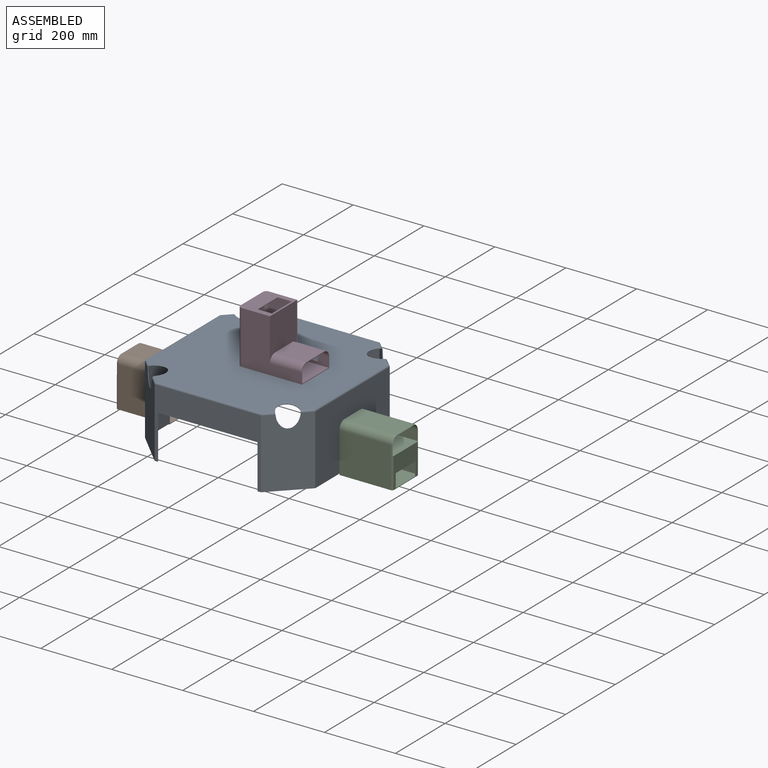
[diagram: assembled view]
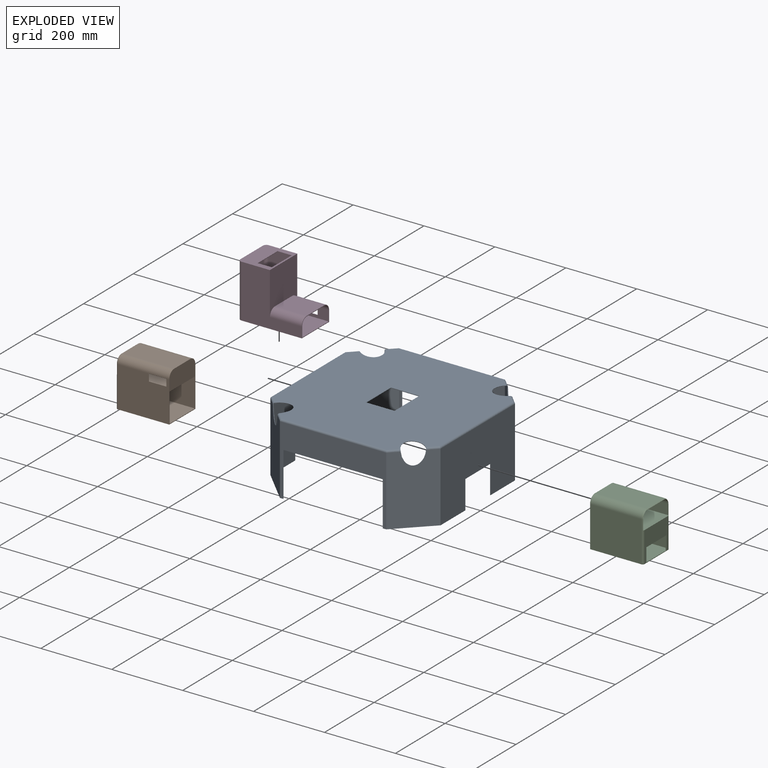
[diagram: exploded view]
GUIDED TOUR — MATED ASSEMBLY (Onshape document 121fe0d97bcf0c29fb9fe97b, AutoMate assembly 121fe0d97bcf0c29fb9fe97b_f3bc597520fd8b47ade184e0_697cc7e36937c5ca32d78726_default)

This assembly has 4 components, labeled P0..P3 below (a component is one placed occurrence of a part; the same part can appear more than once), held together by 3 mates. A mate is a constraint between two components; its type names the relative motion it leaves free:
  FASTENED — locks the two components together rigidly (no relative motion),
  PARALLEL — keeps the two listed directions parallel.
Axis/direction vectors are unit vectors and 'through' points are millimeter coordinates, both in the assembly's world frame.

MATES
  1. FASTENED "Fastened 2": P1 <-> P0, direction (1.000, 0.000, 0.000) through (-240.57, -1.00, -2.46) mm
  2. FASTENED "Fastened 1": P2 <-> P0, direction (-1.000, 0.000, 0.000) through (239.43, -1.00, -2.46) mm
  3. PARALLEL "Parallel 1": P3 <-> P0, direction (0.000, 0.000, -1.000) through (43.43, -1.00, 117.54) mm

ASSEMBLY ORDER
  1. P1 — the base component [order verified]
  2. P0 [order verified]
  3. P3 [order verified]
  4. P2 [order verified]
Order-tag legend:
  [order verified] — this step's position reverses a verified removal order: the component was checked to insert without passing through the ones already placed.

Of the 4 components, 1 carries the full construction recipe — the FeatureScript program that regenerates the part's solid from scratch; the rest are supplied as boundary geometry only.
Each toured component is shown spotlighted twice — in the assembled view, then in the exploded view, where a leader line traces a displaced component back to its assembled socket (saturated green if recipe-attached, orange if geometry-only; every other component desaturated gray) — followed by its recipe or geometry summary and the mates that hold it.
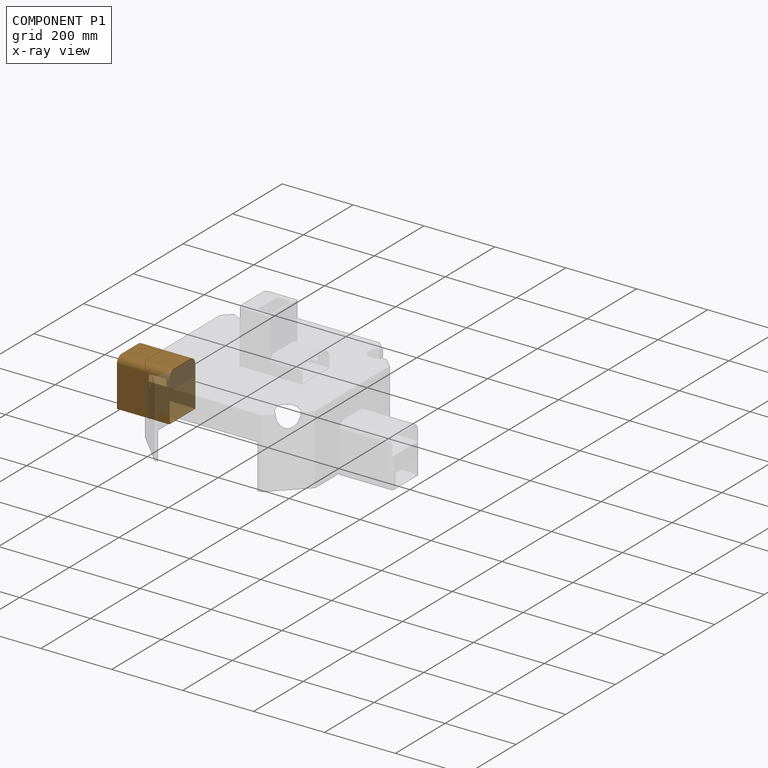
[diagram: component P1 — x-ray view]
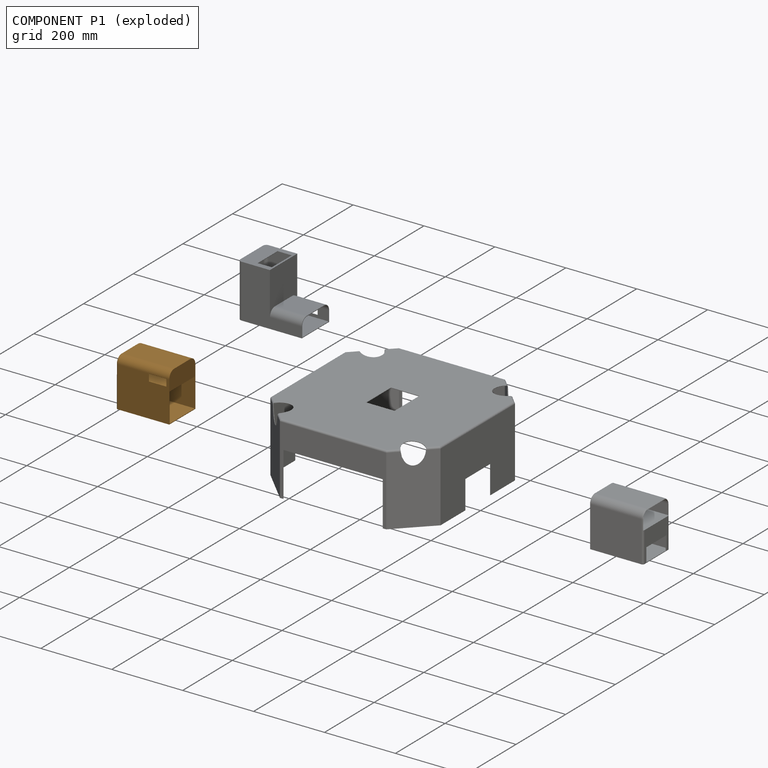
[diagram: component P1 — exploded]
COMPONENT P1 — geometry summary (no construction recipe available for this part):
  bounding box: 150.0 x 136.6 x 108.3 mm
  B-rep topology: 1 solid, 34 faces, 170 edges
  volume: 171647 mm^3 (8% of its bounding box)
Held by: FASTENED mate "Fastened 2" to P0.
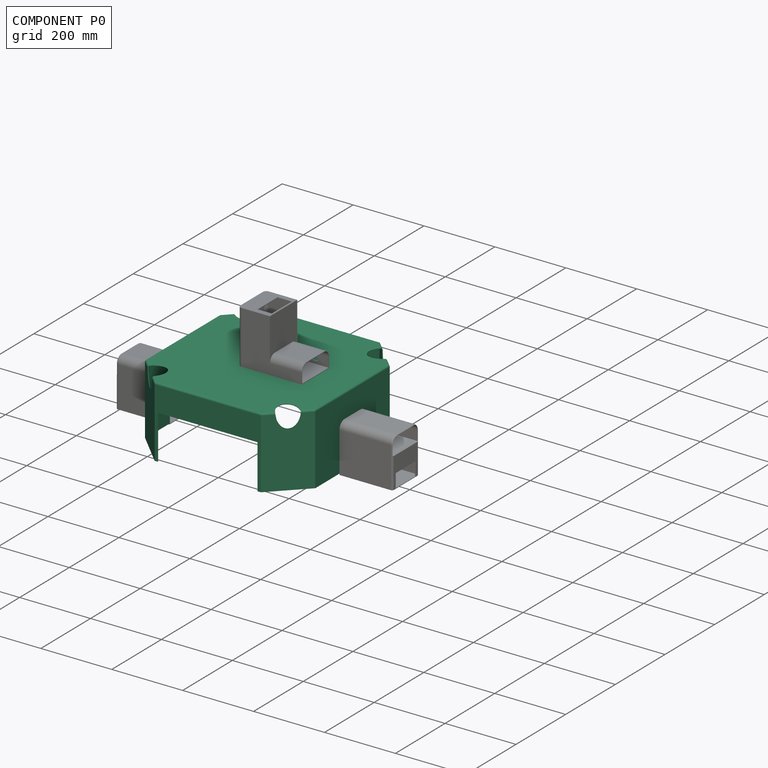
[diagram: component P0 — assembled]
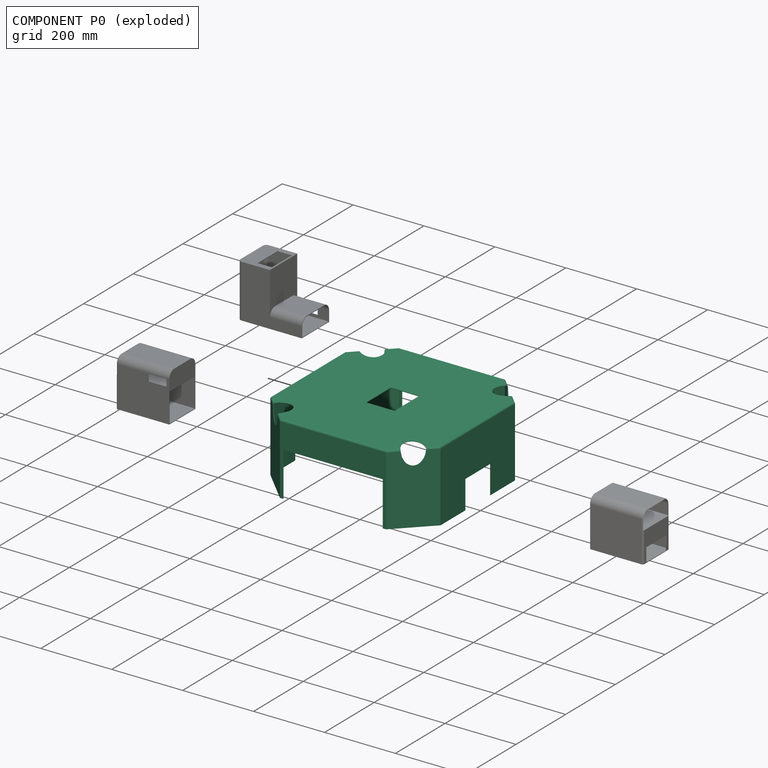
[diagram: component P0 — exploded]
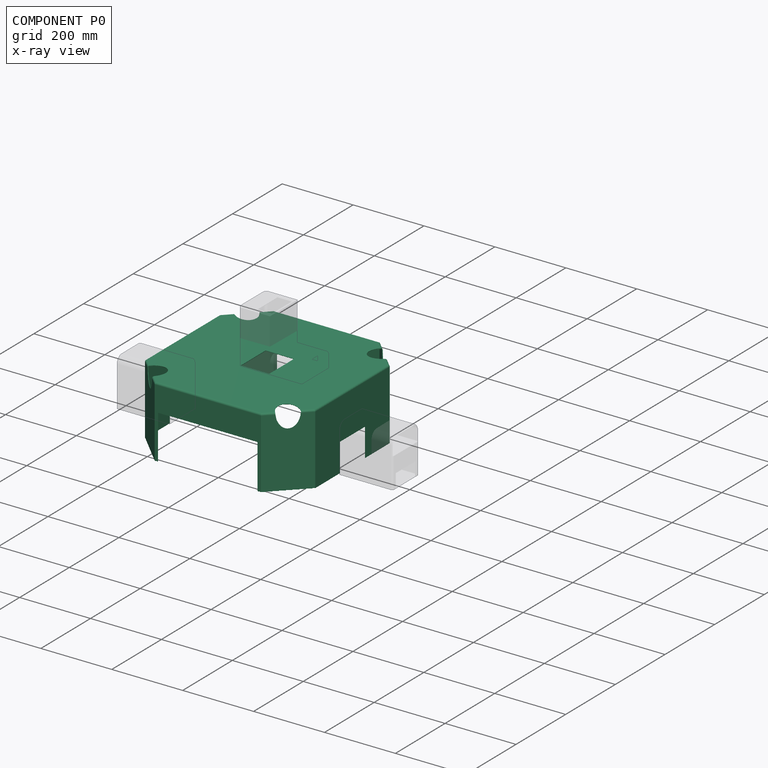
[diagram: component P0 — x-ray view]
COMPONENT P0 — recipe-attached (CADFS 00498683, mesh-verified: the recipe's output STEP matches this component's geometry to below the mesh-comparison resolution (tessellation chordal tolerance ~1.06 mm)).
Held by: FASTENED mate "Fastened 2" to P1; FASTENED mate "Fastened 1" to P2; PARALLEL mate "Parallel 1" to P3.
Construction recipe (FeatureScript — the CAD program that rebuilds this solid; sketch coordinates are in the units given by the * unit suffixes, e.g. mm):

FeatureScript 1511;
import(path : "onshape/std/geometry.fs", version : "1511.0");
import(path : "onshape/std/common.fs", version : "1511.0");
const mm = millimeter;
const VERTEX = EntityType.VERTEX;
const EDGE = EntityType.EDGE;
const FACE = EntityType.FACE;
const BODY = EntityType.BODY;
function v(x, y){return vector(x, y);}
function OD(order){return orderDisambiguation(order);}
function OSD(set){return originalSetDisambiguation(set);}
function TD(topology){return topologyDisambiguation(topology);}
function TDD(query){return trueDependencyDisambiguation(query);}
function sQuery(a, b, c) {return sketchEntityQuery(a, b, c);}

annotation { "Feature Type Name" : "Feature", "Feature Type Description" : "" }
export const myFeature = defineFeature(function(context is Context, id is Id, definition is map)
    precondition{}
    {
        {
            var Q0;
            Q0=qCreatedBy(makeId("Front.planeOp"),FACE);
            var sketch = newSketch(context, id + "F0", { "sketchPlane" : qUnion([Q0])});
            skLineSegment(sketch, "E0.bottom", {"start": v(240, -100) * mm, "end": v(-240, -100) * mm});
            skLineSegment(sketch, "E0.top", {"start": v(240, 100) * mm, "end": v(-240, 100) * mm});
            skLineSegment(sketch, "E0.left", {"start": v(240, -100) * mm, "end": v(240, 100) * mm});
            skLineSegment(sketch, "E0.right", {"start": v(-240, -100) * mm, "end": v(-240, 100) * mm});
            skPoint(sketch, "E0.middle", {"position": v(0, 0) * mm});
            skLineSegment(sketch, "E1", {"start": v(0, 0) * mm, "end": v(0, -124.49) * mm, "construction": true});
            skPoint(sketch, "E1.endSnap0", {"position": v(0, -100) * mm});
            skLineSegment(sketch, "E2", {"start": v(0, -100) * mm, "end": v(140, -100) * mm});
            skLineSegment(sketch, "E3", {"start": v(140, -100) * mm, "end": v(140, 25) * mm});
            skLineSegment(sketch, "E4", {"start": v(140, 25) * mm, "end": v(-140, 25) * mm});
            skLineSegment(sketch, "E5", {"start": v(-140, 25) * mm, "end": v(-140, -100) * mm});
            skLineSegment(sketch, "E6", {"start": v(-140, -100) * mm, "end": v(0, -100) * mm});
            skSolve(sketch);
        }
        {
            var Q0;
            Q0=makeQuery(id+"F0.imprint","IMPRINT",FACE,{"disambiguationData":[TD([[makeQuery(id+"F0.imprint","IMPRINT",EDGE,{"derivedFrom":sQuery(id+"F0.wireOp",EDGE,"E0.top")}),1.0]])]});
            extrude(context, id + "F1", {"entities" : qUnion([Q0]), "endBound" : BoundingType.SYMMETRIC, "depth" : 480 * mm});
        }
        {
            var Q0;
            Q0=makeQuery(id+"F1.opExtrude","CAP_EDGE",EDGE,{"disambiguationData":[OSD([sQuery(id+"F0.wireOp",EDGE,"E0.left")])],"isStart":false});
            var Q1;
            Q1=makeQuery(id+"F1.opExtrude","CAP_EDGE",EDGE,{"disambiguationData":[OSD([sQuery(id+"F0.wireOp",EDGE,"E0.left")])],"isStart":true});
            var Q2;
            Q2=makeQuery(id+"F1.opExtrude","CAP_EDGE",EDGE,{"disambiguationData":[OSD([sQuery(id+"F0.wireOp",EDGE,"E0.right")])],"isStart":true});
            var Q3;
            Q3=makeQuery(id+"F1.opExtrude","CAP_EDGE",EDGE,{"disambiguationData":[OSD([sQuery(id+"F0.wireOp",EDGE,"E0.right")])],"isStart":false});
            chamfer(context, id + "F2", {"entities" : qUnion([Q0, Q1, Q2, Q3]), "width" : 90 * mm, "tangentPropagation" : true});
        }
        {
            var Q0;
            {var subQ0=sQuery(id+"F0.wireOp",EDGE,"E0.bottom");Q0=makeQuery(id+"F1.opExtrude","SWEPT_FACE",FACE,{"disambiguationData":[OSD([subQ0]),TDD([makeQuery(id+"F0.imprint","IMPRINT",EDGE,{"disambiguationData":[TD([[makeQuery(id+"F0.imprint","INTERSECT",VERTEX,{"derivedFrom":[subQ0,sQuery(id+"F0.wireOp",EDGE,"E0.left")]}),-1.0]])],"derivedFrom":subQ0})])]});}
            var Q1;
            {var subQ0=sQuery(id+"F0.wireOp",EDGE,"E0.bottom");Q1=makeQuery(id+"F1.opExtrude","SWEPT_FACE",FACE,{"disambiguationData":[OSD([subQ0]),TDD([makeQuery(id+"F0.imprint","IMPRINT",EDGE,{"disambiguationData":[TD([[makeQuery(id+"F0.imprint","INTERSECT",VERTEX,{"derivedFrom":[subQ0,sQuery(id+"F0.wireOp",EDGE,"E0.right")]}),1.0]])],"derivedFrom":subQ0})])]});}
            var Q2;
            Q2=makeQuery(id+"F1.opExtrude","SWEPT_FACE",FACE,{"disambiguationData":[OSD([sQuery(id+"F0.wireOp",EDGE,"E4")])]});
            var Q3;
            Q3=makeQuery(id+"F1.opExtrude","SWEPT_FACE",FACE,{"disambiguationData":[OSD([sQuery(id+"F0.wireOp",EDGE,"E3")])]});
            var Q4;
            Q4=makeQuery(id+"F1.opExtrude","SWEPT_FACE",FACE,{"disambiguationData":[OSD([sQuery(id+"F0.wireOp",EDGE,"E5")])]});
            shell(context, id + "F3", {"entities" : qUnion([Q0, Q1, Q2, Q3, Q4]), "thickness" : 1.6 * mm});
        }
        {
            var Q0;
            Q0=makeQuery(id+"F2.opChamfer","BLEND_EDGE",EDGE,{"blendedFrom":[makeQuery(id+"F1.opExtrude","CAP_EDGE",EDGE,{"disambiguationData":[OSD([sQuery(id+"F0.wireOp",EDGE,"E0.right")])],"isStart":true}),makeQuery(id+"F1.opExtrude","SWEPT_FACE",FACE,{"disambiguationData":[OSD([sQuery(id+"F0.wireOp",EDGE,"E0.top")])]})],"blendedInto":[makeQuery(id+"F1.opExtrude","SWEPT_FACE",FACE,{"disambiguationData":[OSD([sQuery(id+"F0.wireOp",EDGE,"E0.top")])]})]});
            cPlane(context, id + "F4", {"entities" : qUnion([Q0]), "cplaneType" : CPlaneType.LINE_ANGLE, "offset" : 25 * mm, "angle" : 45 * degree, "width" : 150 * mm, "height" : 150 * mm});
        }
        {
            var Q0;
            Q0=makeQuery(id+"F2.opChamfer","BLEND_EDGE",EDGE,{"blendedFrom":[makeQuery(id+"F1.opExtrude","CAP_EDGE",EDGE,{"disambiguationData":[OSD([sQuery(id+"F0.wireOp",EDGE,"E0.right")])],"isStart":false}),makeQuery(id+"F1.opExtrude","SWEPT_FACE",FACE,{"disambiguationData":[OSD([sQuery(id+"F0.wireOp",EDGE,"E0.top")])]})],"blendedInto":[makeQuery(id+"F1.opExtrude","SWEPT_FACE",FACE,{"disambiguationData":[OSD([sQuery(id+"F0.wireOp",EDGE,"E0.top")])]})]});
            cPlane(context, id + "F5", {"entities" : qUnion([Q0]), "cplaneType" : CPlaneType.LINE_ANGLE, "offset" : 25 * mm, "angle" : 45 * degree, "oppositeDirection" : true, "width" : 150 * mm, "height" : 150 * mm});
        }
        {
            var Q0;
            Q0=makeQuery(id+"F2.opChamfer","BLEND_EDGE",EDGE,{"blendedFrom":[makeQuery(id+"F1.opExtrude","CAP_EDGE",EDGE,{"disambiguationData":[OSD([sQuery(id+"F0.wireOp",EDGE,"E0.left")])],"isStart":false}),makeQuery(id+"F1.opExtrude","SWEPT_FACE",FACE,{"disambiguationData":[OSD([sQuery(id+"F0.wireOp",EDGE,"E0.top")])]})],"blendedInto":[makeQuery(id+"F1.opExtrude","SWEPT_FACE",FACE,{"disambiguationData":[OSD([sQuery(id+"F0.wireOp",EDGE,"E0.top")])]})]});
            cPlane(context, id + "F6", {"entities" : qUnion([Q0]), "cplaneType" : CPlaneType.LINE_ANGLE, "offset" : 25 * mm, "angle" : 45 * degree, "width" : 150 * mm, "height" : 150 * mm});
        }
        {
            var Q0;
            Q0=makeQuery(id+"F2.opChamfer","BLEND_EDGE",EDGE,{"blendedFrom":[makeQuery(id+"F1.opExtrude","CAP_EDGE",EDGE,{"disambiguationData":[OSD([sQuery(id+"F0.wireOp",EDGE,"E0.left")])],"isStart":true}),makeQuery(id+"F1.opExtrude","SWEPT_FACE",FACE,{"disambiguationData":[OSD([sQuery(id+"F0.wireOp",EDGE,"E0.top")])]})],"blendedInto":[makeQuery(id+"F1.opExtrude","SWEPT_FACE",FACE,{"disambiguationData":[OSD([sQuery(id+"F0.wireOp",EDGE,"E0.top")])]})]});
            cPlane(context, id + "F7", {"entities" : qUnion([Q0]), "cplaneType" : CPlaneType.LINE_ANGLE, "offset" : 25 * mm, "angle" : 45 * degree, "oppositeDirection" : true, "width" : 150 * mm, "height" : 150 * mm});
        }
        {
            var Q0;
            Q0=qCreatedBy(id+"F6.planeOp",FACE);
            var sketch = newSketch(context, id + "F8", { "sketchPlane" : qUnion([Q0])});
            skCircle(sketch, "E7", {"center": v(71.76, -101.48) * mm, "radius": 30 * mm});
            skPoint(sketch, "E8.trimOffspring.end.orphan", {"position": v(123.72, -64.74) * mm});
            skPoint(sketch, "E9.0.start.orphan", {"position": v(19.8, -138.22) * mm});
            skSolve(sketch);
        }
        {
            var Q0;
            Q0=qCreatedBy(id+"F7.planeOp",FACE);
            var sketch = newSketch(context, id + "F9", { "sketchPlane" : qUnion([Q0])});
            skCircle(sketch, "E10", {"center": v(71.76, -101.48) * mm, "radius": 30 * mm});
            skPoint(sketch, "E11.trimOffspring.end.orphan", {"position": v(19.8, -138.22) * mm});
            skPoint(sketch, "E12.0.start.orphan", {"position": v(123.72, -64.74) * mm});
            skSolve(sketch);
        }
        {
            var Q0;
            Q0=qCreatedBy(id+"F4.planeOp",FACE);
            var sketch = newSketch(context, id + "F10", { "sketchPlane" : qUnion([Q0])});
            skCircle(sketch, "E13", {"center": v(-71.76, -101.48) * mm, "radius": 30 * mm});
            skPoint(sketch, "E14.orphan", {"position": v(-19.8, -138.22) * mm});
            skPoint(sketch, "E15.0.end.orphan", {"position": v(-123.72, -64.74) * mm});
            skSolve(sketch);
        }
        {
            var Q0;
            Q0=qCreatedBy(id+"F5.planeOp",FACE);
            var sketch = newSketch(context, id + "F11", { "sketchPlane" : qUnion([Q0])});
            skCircle(sketch, "E16", {"center": v(-71.76, -101.48) * mm, "radius": 30 * mm});
            skPoint(sketch, "E17.orphan", {"position": v(-123.72, -64.74) * mm});
            skPoint(sketch, "E18.0.end.orphan", {"position": v(-19.8, -138.22) * mm});
            skSolve(sketch);
        }
        {
            var Q0;
            Q0=makeQuery(id+"F10.imprint","IMPRINT",FACE,{"disambiguationData":[TD([[makeQuery(id+"F10.imprint","IMPRINT",EDGE,{"derivedFrom":sQuery(id+"F10.wireOp",EDGE,"E13")}),1.0]])]});
            extrude(context, id + "F12", {"entities" : qUnion([Q0]), "operationType" : NewBodyOperationType.REMOVE, "depth" : 78 * mm});
        }
        {
            var Q0;
            Q0=makeQuery(id+"F11.imprint","IMPRINT",FACE,{"disambiguationData":[TD([[makeQuery(id+"F11.imprint","IMPRINT",EDGE,{"derivedFrom":sQuery(id+"F11.wireOp",EDGE,"E16")}),1.0]])]});
            extrude(context, id + "F13", {"entities" : qUnion([Q0]), "operationType" : NewBodyOperationType.REMOVE, "oppositeDirection" : true, "depth" : 82 * mm});
        }
        {
            var Q0;
            Q0=makeQuery(id+"F8.imprint","IMPRINT",FACE,{"disambiguationData":[TD([[makeQuery(id+"F8.imprint","IMPRINT",EDGE,{"derivedFrom":sQuery(id+"F8.wireOp",EDGE,"E7")}),1.0]])]});
            extrude(context, id + "F14", {"entities" : qUnion([Q0]), "operationType" : NewBodyOperationType.REMOVE, "oppositeDirection" : true, "depth" : 153 * mm});
        }
        {
            var Q0;
            Q0=makeQuery(id+"F9.imprint","IMPRINT",FACE,{"disambiguationData":[TD([[makeQuery(id+"F9.imprint","IMPRINT",EDGE,{"derivedFrom":sQuery(id+"F9.wireOp",EDGE,"E10")}),1.0]])]});
            extrude(context, id + "F15", {"entities" : qUnion([Q0]), "operationType" : NewBodyOperationType.REMOVE, "depth" : 141 * mm});
        }
        {
            var Q0;
            Q0=makeQuery(id+"F1.opExtrude","SWEPT_FACE",FACE,{"disambiguationData":[OSD([sQuery(id+"F0.wireOp",EDGE,"E0.right")])]});
            var sketch = newSketch(context, id + "F16", { "sketchPlane" : qUnion([Q0])});
            skLineSegment(sketch, "E19.0.0", {"start": v(-50, -100) * mm, "end": v(50, -100) * mm});
            skPoint(sketch, "E20.endSnap0", {"position": v(0, -100) * mm});
            skLineSegment(sketch, "E21", {"start": v(0, -100) * mm, "end": v(-50, -100) * mm});
            skLineSegment(sketch, "E22", {"start": v(-50, -100) * mm, "end": v(-50, -20) * mm});
            skLineSegment(sketch, "E23", {"start": v(-50, -20) * mm, "end": v(50, -20) * mm});
            skLineSegment(sketch, "E24", {"start": v(50, -20) * mm, "end": v(50, -100) * mm});
            skLineSegment(sketch, "E25", {"start": v(50, -100) * mm, "end": v(0, -100) * mm});
            skPoint(sketch, "E19.0.1.start.orphan", {"position": v(150, -100) * mm});
            skPoint(sketch, "E19.0.2.start.orphan", {"position": v(150, 100) * mm});
            skPoint(sketch, "E19.0.3.end.orphan", {"position": v(-150, -100) * mm});
            skPoint(sketch, "E19.0.3.start.orphan", {"position": v(-150, 100) * mm});
            skPoint(sketch, "E20.end.orphan", {"position": v(0, -20) * mm});
            skSolve(sketch);
        }
        {
            var Q0;
            Q0 = qSketchRegion(id + "F16", true);
            extrude(context, id + "F17", {"entities" : qUnion([Q0]), "operationType" : NewBodyOperationType.REMOVE, "oppositeDirection" : true, "depth" : 688 * mm});
        }
        {
            var Q0;
            Q0=makeQuery(id+"F1.opExtrude","SWEPT_FACE",FACE,{"disambiguationData":[OSD([sQuery(id+"F0.wireOp",EDGE,"E0.top")])]});
            var sketch = newSketch(context, id + "F18", { "sketchPlane" : qUnion([Q0])});
            skLineSegment(sketch, "E26.bottom", {"start": v(40, -50) * mm, "end": v(-40, -50) * mm});
            skLineSegment(sketch, "E26.top", {"start": v(40, 50) * mm, "end": v(-40, 50) * mm});
            skLineSegment(sketch, "E26.left", {"start": v(40, -50) * mm, "end": v(40, 50) * mm});
            skLineSegment(sketch, "E26.right", {"start": v(-40, -50) * mm, "end": v(-40, 50) * mm});
            skPoint(sketch, "E26.middle", {"position": v(0, 0) * mm});
            skPoint(sketch, "E27.0.3.start.orphan", {"position": v(-150, 240) * mm});
            skPoint(sketch, "E27.0.4.end.orphan", {"position": v(-173.79, 216.21) * mm});
            skPoint(sketch, "E27.0.5.start.orphan", {"position": v(-216.21, 173.79) * mm});
            skPoint(sketch, "E27.0.6.start.orphan", {"position": v(-240, 150) * mm});
            skPoint(sketch, "E27.0.7.start.orphan", {"position": v(-240, -150) * mm});
            skPoint(sketch, "E27.0.8.end.orphan", {"position": v(-216.21, -173.79) * mm});
            skPoint(sketch, "E27.0.9.start.orphan", {"position": v(-173.79, -216.21) * mm});
            skPoint(sketch, "E27.0.10.start.orphan", {"position": v(-150, -240) * mm});
            skPoint(sketch, "E27.0.11.start.orphan", {"position": v(150, -240) * mm});
            skPoint(sketch, "E27.0.12.end.orphan", {"position": v(173.79, -216.21) * mm});
            skPoint(sketch, "E27.0.13.start.orphan", {"position": v(216.21, -173.79) * mm});
            skPoint(sketch, "E27.0.14.start.orphan", {"position": v(240, -150) * mm});
            skPoint(sketch, "E27.0.15.start.orphan", {"position": v(240, 150) * mm});
            skPoint(sketch, "E27.0.1.end.orphan", {"position": v(150, 240) * mm});
            skPoint(sketch, "E27.0.0.end.orphan", {"position": v(216.21, 173.79) * mm});
            skPoint(sketch, "E27.0.0.start.orphan", {"position": v(173.79, 216.21) * mm});
            skLineSegment(sketch, "E28", {"start": v(0, -50) * mm, "end": v(0, 59.6) * mm, "construction": true});
            skSolve(sketch);
        }
        {
            var Q0;
            Q0 = qSketchRegion(id + "F18", true);
            extrude(context, id + "F19", {"entities" : qUnion([Q0]), "operationType" : NewBodyOperationType.REMOVE, "oppositeDirection" : true, "depth" : 25 * mm});
        }
        {
            var Q0;
            Q0=makeQuery(id+"F1.opExtrude","CAP_EDGE",EDGE,{"disambiguationData":[OSD([sQuery(id+"F0.wireOp",EDGE,"E0.top")])],"isStart":true});
            var Q1;
            {var subQ0=sQuery(id+"F0.wireOp",EDGE,"E0.right");var subQ1=sQuery(id+"F0.wireOp",EDGE,"E0.top");var subQ2=makeQuery(id+"F1.opExtrude","SWEPT_FACE",FACE,{"disambiguationData":[OSD([subQ1])]});var subQ3=makeQuery(id+"F1.opExtrude","CAP_EDGE",EDGE,{"disambiguationData":[OSD([subQ0])],"isStart":true});Q1=makeQuery(id+"F12.boolean.opBoolean","SPLIT",EDGE,{"disambiguationData":[TD([makeQuery(id+"F1.opExtrude","CAP_FACE",FACE,{"disambiguationData":[OSD([sQuery(id+"F0.wireOp",EDGE,"E0.bottom"),subQ1,sQuery(id+"F0.wireOp",EDGE,"E0.left"),subQ0,sQuery(id+"F0.wireOp",EDGE,"E3"),sQuery(id+"F0.wireOp",EDGE,"E4"),sQuery(id+"F0.wireOp",EDGE,"E5")])],"isStart":true})])],"derivedFrom":makeQuery(id+"F2.opChamfer","BLEND_EDGE",EDGE,{"blendedFrom":[subQ3,subQ2],"blendedInto":[subQ2]})});}
            var Q2;
            {var subQ0=sQuery(id+"F0.wireOp",EDGE,"E0.left");var subQ1=sQuery(id+"F0.wireOp",EDGE,"E0.top");var subQ2=makeQuery(id+"F1.opExtrude","CAP_EDGE",EDGE,{"disambiguationData":[OSD([subQ0])],"isStart":true});var subQ3=makeQuery(id+"F1.opExtrude","SWEPT_FACE",FACE,{"disambiguationData":[OSD([subQ1])]});Q2=makeQuery(id+"F15.boolean.opBoolean","SPLIT",EDGE,{"disambiguationData":[TD([makeQuery(id+"F1.opExtrude","CAP_FACE",FACE,{"disambiguationData":[OSD([sQuery(id+"F0.wireOp",EDGE,"E0.bottom"),subQ1,subQ0,sQuery(id+"F0.wireOp",EDGE,"E0.right"),sQuery(id+"F0.wireOp",EDGE,"E3"),sQuery(id+"F0.wireOp",EDGE,"E4"),sQuery(id+"F0.wireOp",EDGE,"E5")])],"isStart":true})])],"derivedFrom":makeQuery(id+"F2.opChamfer","BLEND_EDGE",EDGE,{"blendedFrom":[subQ2,subQ3],"blendedInto":[subQ3]})});}
            var Q3;
            {var subQ0=makeQuery(id+"F1.opExtrude","SWEPT_FACE",FACE,{"disambiguationData":[OSD([sQuery(id+"F0.wireOp",EDGE,"E0.top")])]});var subQ1=sQuery(id+"F0.wireOp",EDGE,"E0.left");var subQ2=makeQuery(id+"F1.opExtrude","CAP_EDGE",EDGE,{"disambiguationData":[OSD([subQ1])],"isStart":true});Q3=makeQuery(id+"F15.boolean.opBoolean","SPLIT",EDGE,{"disambiguationData":[TD([makeQuery(id+"F1.opExtrude","SWEPT_FACE",FACE,{"disambiguationData":[OSD([subQ1])]})])],"derivedFrom":makeQuery(id+"F2.opChamfer","BLEND_EDGE",EDGE,{"blendedFrom":[subQ2,subQ0],"blendedInto":[subQ0]})});}
            var Q4;
            {var subQ0=makeQuery(id+"F1.opExtrude","SWEPT_FACE",FACE,{"disambiguationData":[OSD([sQuery(id+"F0.wireOp",EDGE,"E0.top")])]});var subQ1=sQuery(id+"F0.wireOp",EDGE,"E0.right");var subQ2=makeQuery(id+"F1.opExtrude","CAP_EDGE",EDGE,{"disambiguationData":[OSD([subQ1])],"isStart":true});Q4=makeQuery(id+"F12.boolean.opBoolean","SPLIT",EDGE,{"disambiguationData":[TD([makeQuery(id+"F1.opExtrude","SWEPT_FACE",FACE,{"disambiguationData":[OSD([subQ1])]})])],"derivedFrom":makeQuery(id+"F2.opChamfer","BLEND_EDGE",EDGE,{"blendedFrom":[subQ2,subQ0],"blendedInto":[subQ0]})});}
            var Q5;
            Q5=makeQuery(id+"F1.opExtrude","SWEPT_EDGE",EDGE,{"disambiguationData":[OSD([sQuery(id+"F0.wireOp",EDGE,"E0.top"),sQuery(id+"F0.wireOp",EDGE,"E0.right")])]});
            var Q6;
            {var subQ0=makeQuery(id+"F1.opExtrude","SWEPT_FACE",FACE,{"disambiguationData":[OSD([sQuery(id+"F0.wireOp",EDGE,"E0.top")])]});var subQ1=sQuery(id+"F0.wireOp",EDGE,"E0.right");var subQ2=makeQuery(id+"F1.opExtrude","CAP_EDGE",EDGE,{"disambiguationData":[OSD([subQ1])],"isStart":false});Q6=makeQuery(id+"F13.boolean.opBoolean","SPLIT",EDGE,{"disambiguationData":[TD([makeQuery(id+"F1.opExtrude","SWEPT_FACE",FACE,{"disambiguationData":[OSD([subQ1])]})])],"derivedFrom":makeQuery(id+"F2.opChamfer","BLEND_EDGE",EDGE,{"blendedFrom":[subQ2,subQ0],"blendedInto":[subQ0]})});}
            var Q7;
            {var subQ0=sQuery(id+"F0.wireOp",EDGE,"E0.right");var subQ1=sQuery(id+"F0.wireOp",EDGE,"E0.top");var subQ2=makeQuery(id+"F1.opExtrude","SWEPT_FACE",FACE,{"disambiguationData":[OSD([subQ1])]});var subQ3=makeQuery(id+"F1.opExtrude","CAP_EDGE",EDGE,{"disambiguationData":[OSD([subQ0])],"isStart":false});Q7=makeQuery(id+"F13.boolean.opBoolean","SPLIT",EDGE,{"disambiguationData":[TD([makeQuery(id+"F1.opExtrude","CAP_FACE",FACE,{"disambiguationData":[OSD([sQuery(id+"F0.wireOp",EDGE,"E0.bottom"),subQ1,sQuery(id+"F0.wireOp",EDGE,"E0.left"),subQ0,sQuery(id+"F0.wireOp",EDGE,"E3"),sQuery(id+"F0.wireOp",EDGE,"E4"),sQuery(id+"F0.wireOp",EDGE,"E5")])],"isStart":false})])],"derivedFrom":makeQuery(id+"F2.opChamfer","BLEND_EDGE",EDGE,{"blendedFrom":[subQ3,subQ2],"blendedInto":[subQ2]})});}
            var Q8;
            Q8=makeQuery(id+"F1.opExtrude","CAP_EDGE",EDGE,{"disambiguationData":[OSD([sQuery(id+"F0.wireOp",EDGE,"E0.top")])],"isStart":false});
            var Q9;
            {var subQ0=makeQuery(id+"F1.opExtrude","SWEPT_FACE",FACE,{"disambiguationData":[OSD([sQuery(id+"F0.wireOp",EDGE,"E0.top")])]});var subQ1=sQuery(id+"F0.wireOp",EDGE,"E0.left");var subQ2=makeQuery(id+"F1.opExtrude","CAP_EDGE",EDGE,{"disambiguationData":[OSD([subQ1])],"isStart":false});Q9=makeQuery(id+"F14.boolean.opBoolean","SPLIT",EDGE,{"disambiguationData":[TD([makeQuery(id+"F1.opExtrude","SWEPT_FACE",FACE,{"disambiguationData":[OSD([subQ1])]})])],"derivedFrom":makeQuery(id+"F2.opChamfer","BLEND_EDGE",EDGE,{"blendedFrom":[subQ2,subQ0],"blendedInto":[subQ0]})});}
            var Q10;
            {var subQ0=sQuery(id+"F0.wireOp",EDGE,"E0.left");var subQ1=sQuery(id+"F0.wireOp",EDGE,"E0.top");var subQ2=makeQuery(id+"F1.opExtrude","CAP_EDGE",EDGE,{"disambiguationData":[OSD([subQ0])],"isStart":false});var subQ3=makeQuery(id+"F1.opExtrude","SWEPT_FACE",FACE,{"disambiguationData":[OSD([subQ1])]});Q10=makeQuery(id+"F14.boolean.opBoolean","SPLIT",EDGE,{"disambiguationData":[TD([makeQuery(id+"F1.opExtrude","CAP_FACE",FACE,{"disambiguationData":[OSD([sQuery(id+"F0.wireOp",EDGE,"E0.bottom"),subQ1,subQ0,sQuery(id+"F0.wireOp",EDGE,"E0.right"),sQuery(id+"F0.wireOp",EDGE,"E3"),sQuery(id+"F0.wireOp",EDGE,"E4"),sQuery(id+"F0.wireOp",EDGE,"E5")])],"isStart":false})])],"derivedFrom":makeQuery(id+"F2.opChamfer","BLEND_EDGE",EDGE,{"blendedFrom":[subQ2,subQ3],"blendedInto":[subQ3]})});}
            var Q11;
            Q11=makeQuery(id+"F1.opExtrude","SWEPT_EDGE",EDGE,{"disambiguationData":[OSD([sQuery(id+"F0.wireOp",EDGE,"E0.top"),sQuery(id+"F0.wireOp",EDGE,"E0.left")])]});
            var Q12;
            {var subQ0=sQuery(id+"F0.wireOp",EDGE,"E3");Q12=makeQuery(id+"F3.opShell","OFFSET_EDGE",EDGE,{"disambiguationData":[OSD([subQ0]),TDD([makeQuery(id+"F1.opExtrude","CAP_EDGE",EDGE,{"disambiguationData":[OSD([subQ0])],"isStart":false})])]});}
            var Q13;
            {var subQ0=sQuery(id+"F0.wireOp",EDGE,"E4");Q13=makeQuery(id+"F3.opShell","OFFSET_EDGE",EDGE,{"disambiguationData":[OSD([subQ0]),TDD([makeQuery(id+"F1.opExtrude","CAP_EDGE",EDGE,{"disambiguationData":[OSD([subQ0])],"isStart":false})])]});}
            var Q14;
            {var subQ0=sQuery(id+"F0.wireOp",EDGE,"E5");Q14=makeQuery(id+"F3.opShell","OFFSET_EDGE",EDGE,{"disambiguationData":[OSD([subQ0]),TDD([makeQuery(id+"F1.opExtrude","CAP_EDGE",EDGE,{"disambiguationData":[OSD([subQ0])],"isStart":false})])]});}
            var Q15;
            {var subQ0=sQuery(id+"F0.wireOp",EDGE,"E0.right");Q15=makeQuery(id+"F17.boolean.opBoolean","INTERSECT",EDGE,{"derivedFrom":[makeQuery(id+"F3.opShell","OFFSET_FACE",FACE,{"disambiguationData":[OSD([subQ0]),TDD([makeQuery(id+"F1.opExtrude","SWEPT_FACE",FACE,{"disambiguationData":[OSD([subQ0])]})])]}),makeQuery(id+"F17.opExtrude","SWEPT_FACE",FACE,{"disambiguationData":[OSD([sQuery(id+"F16.wireOp",EDGE,"E24")])]})]});}
            var Q16;
            {var subQ0=sQuery(id+"F0.wireOp",EDGE,"E0.right");Q16=makeQuery(id+"F17.boolean.opBoolean","INTERSECT",EDGE,{"derivedFrom":[makeQuery(id+"F3.opShell","OFFSET_FACE",FACE,{"disambiguationData":[OSD([subQ0]),TDD([makeQuery(id+"F1.opExtrude","SWEPT_FACE",FACE,{"disambiguationData":[OSD([subQ0])]})])]}),makeQuery(id+"F17.opExtrude","SWEPT_FACE",FACE,{"disambiguationData":[OSD([sQuery(id+"F16.wireOp",EDGE,"E22")])]})]});}
            var Q17;
            {var subQ0=sQuery(id+"F0.wireOp",EDGE,"E0.right");Q17=makeQuery(id+"F17.boolean.opBoolean","INTERSECT",EDGE,{"derivedFrom":[makeQuery(id+"F3.opShell","OFFSET_FACE",FACE,{"disambiguationData":[OSD([subQ0]),TDD([makeQuery(id+"F1.opExtrude","SWEPT_FACE",FACE,{"disambiguationData":[OSD([subQ0])]})])]}),makeQuery(id+"F17.opExtrude","SWEPT_FACE",FACE,{"disambiguationData":[OSD([sQuery(id+"F16.wireOp",EDGE,"E23")])]})]});}
            var Q18;
            {var subQ0=sQuery(id+"F0.wireOp",EDGE,"E0.left");Q18=makeQuery(id+"F17.boolean.opBoolean","INTERSECT",EDGE,{"derivedFrom":[makeQuery(id+"F3.opShell","OFFSET_FACE",FACE,{"disambiguationData":[OSD([subQ0]),TDD([makeQuery(id+"F1.opExtrude","SWEPT_FACE",FACE,{"disambiguationData":[OSD([subQ0])]})])]}),makeQuery(id+"F17.opExtrude","SWEPT_FACE",FACE,{"disambiguationData":[OSD([sQuery(id+"F16.wireOp",EDGE,"E24")])]})]});}
            var Q19;
            {var subQ0=sQuery(id+"F0.wireOp",EDGE,"E0.left");Q19=makeQuery(id+"F17.boolean.opBoolean","INTERSECT",EDGE,{"derivedFrom":[makeQuery(id+"F3.opShell","OFFSET_FACE",FACE,{"disambiguationData":[OSD([subQ0]),TDD([makeQuery(id+"F1.opExtrude","SWEPT_FACE",FACE,{"disambiguationData":[OSD([subQ0])]})])]}),makeQuery(id+"F17.opExtrude","SWEPT_FACE",FACE,{"disambiguationData":[OSD([sQuery(id+"F16.wireOp",EDGE,"E23")])]})]});}
            var Q20;
            {var subQ0=sQuery(id+"F0.wireOp",EDGE,"E0.left");Q20=makeQuery(id+"F17.boolean.opBoolean","INTERSECT",EDGE,{"derivedFrom":[makeQuery(id+"F3.opShell","OFFSET_FACE",FACE,{"disambiguationData":[OSD([subQ0]),TDD([makeQuery(id+"F1.opExtrude","SWEPT_FACE",FACE,{"disambiguationData":[OSD([subQ0])]})])]}),makeQuery(id+"F17.opExtrude","SWEPT_FACE",FACE,{"disambiguationData":[OSD([sQuery(id+"F16.wireOp",EDGE,"E22")])]})]});}
            var Q21;
            Q21=makeQuery(id+"F1.opExtrude","CAP_EDGE",EDGE,{"disambiguationData":[OSD([sQuery(id+"F0.wireOp",EDGE,"E4")])],"isStart":true});
            var Q22;
            Q22=makeQuery(id+"F1.opExtrude","CAP_EDGE",EDGE,{"disambiguationData":[OSD([sQuery(id+"F0.wireOp",EDGE,"E3")])],"isStart":true});
            var Q23;
            Q23=makeQuery(id+"F1.opExtrude","CAP_EDGE",EDGE,{"disambiguationData":[OSD([sQuery(id+"F0.wireOp",EDGE,"E5")])],"isStart":true});
            fillet(context, id + "F20", {"entities" : qUnion([Q0, Q1, Q2, Q3, Q4, Q5, Q6, Q7, Q8, Q9, Q10, Q11, Q12, Q13, Q14, Q15, Q16, Q17, Q18, Q19, Q20, Q21, Q22, Q23]), "radius" : 5 * mm, "tangentPropagation" : true, "allowEdgeOverflow" : false});
        }
    });
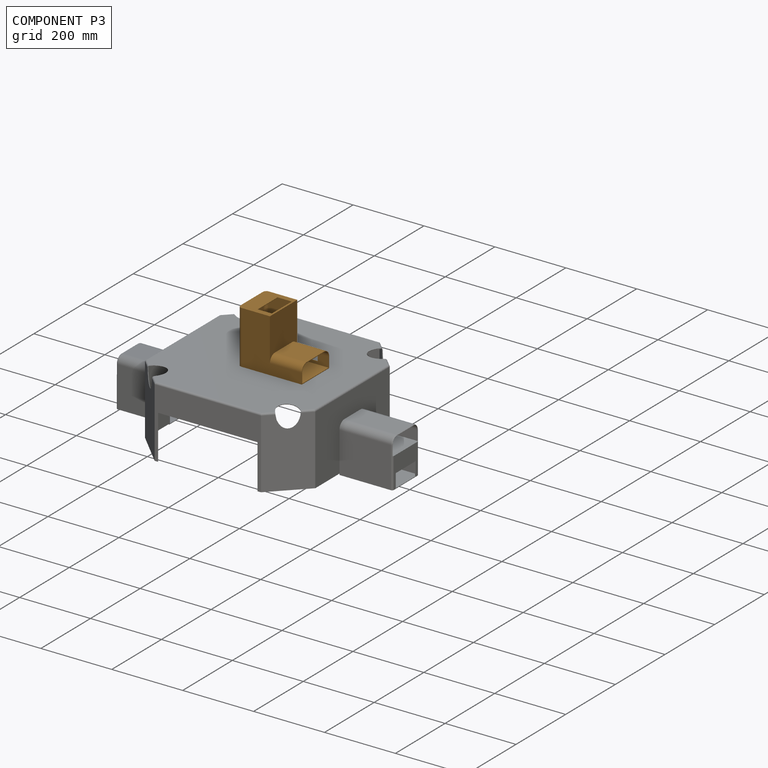
[diagram: component P3 — assembled]
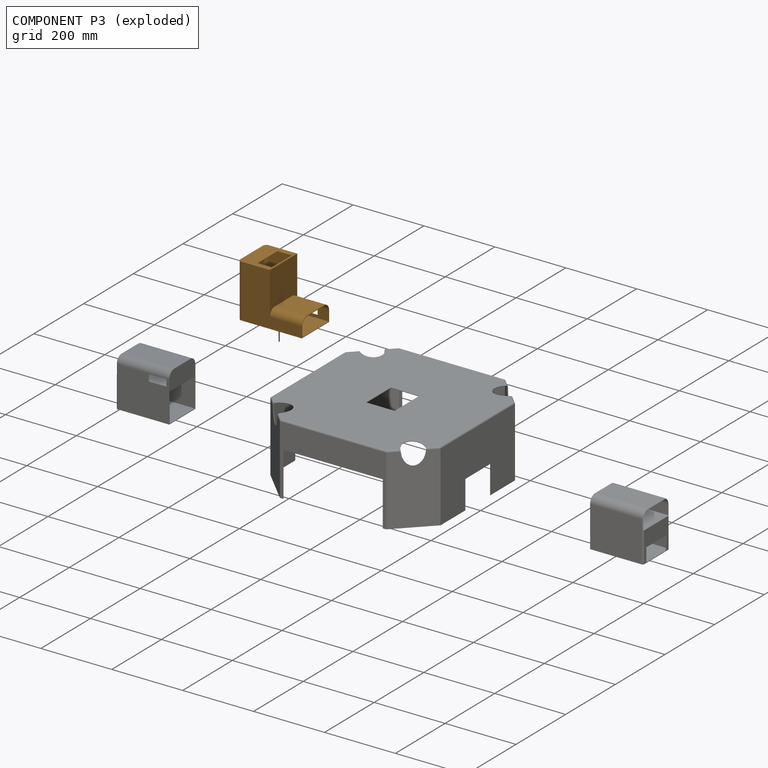
[diagram: component P3 — exploded]
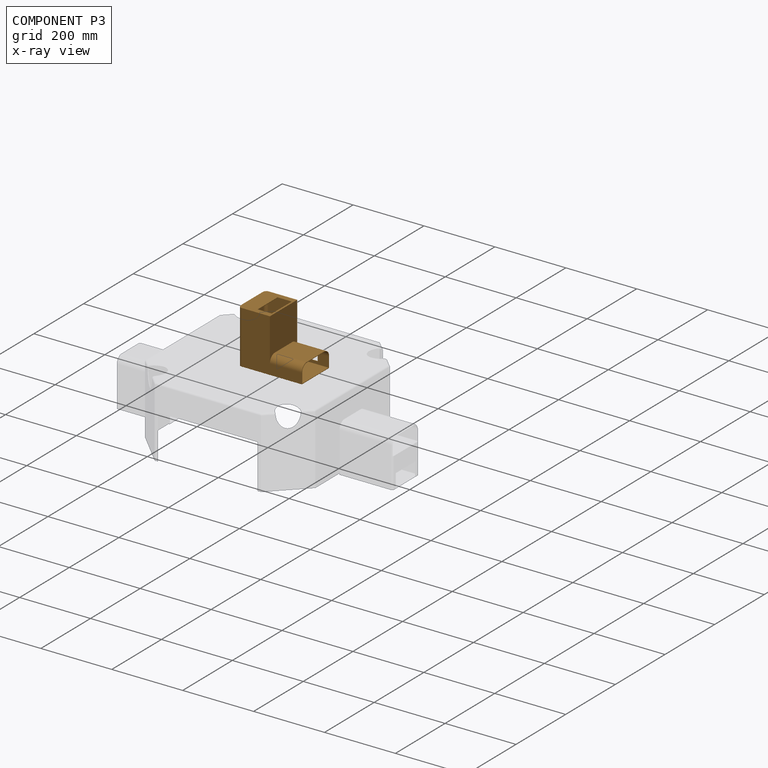
[diagram: component P3 — x-ray view]
COMPONENT P3 — geometry summary (no construction recipe available for this part):
  bounding box: 180.0 x 150.0 x 110.0 mm
  B-rep topology: 1 solid, 34 faces, 180 edges
  volume: 151166 mm^3 (5% of its bounding box)
Held by: PARALLEL mate "Parallel 1" to P0.
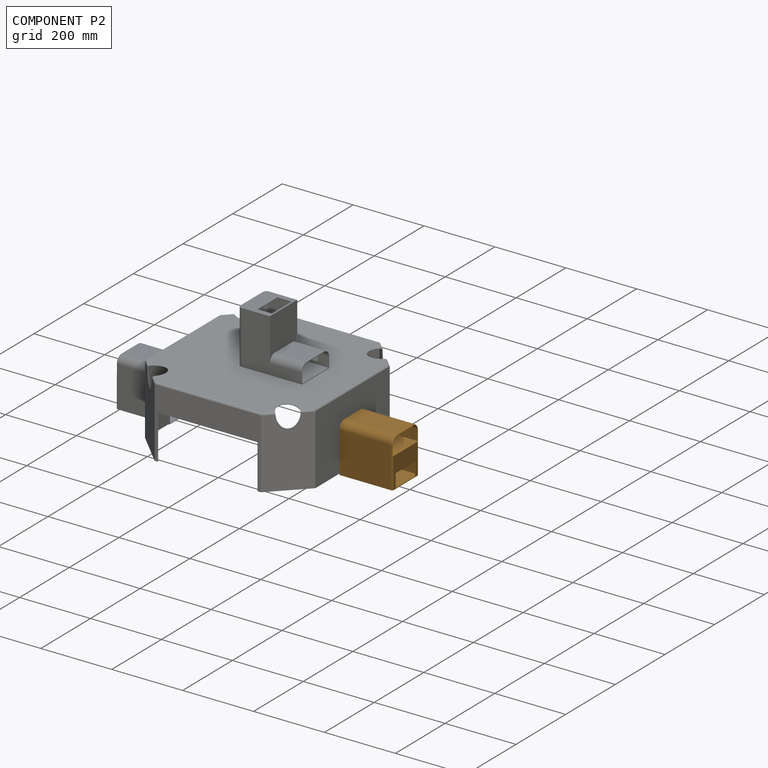
[diagram: component P2 — assembled]
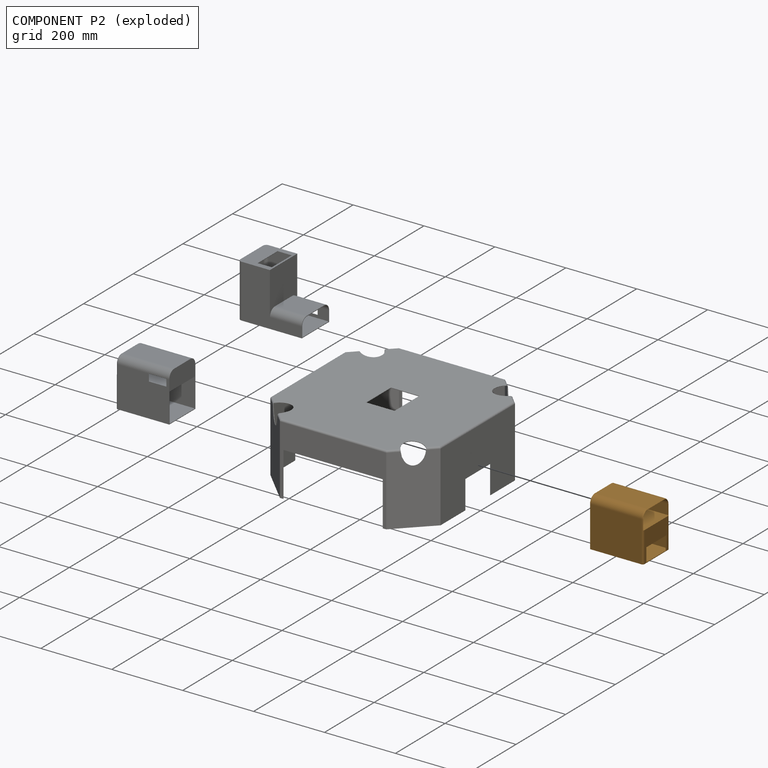
[diagram: component P2 — exploded]
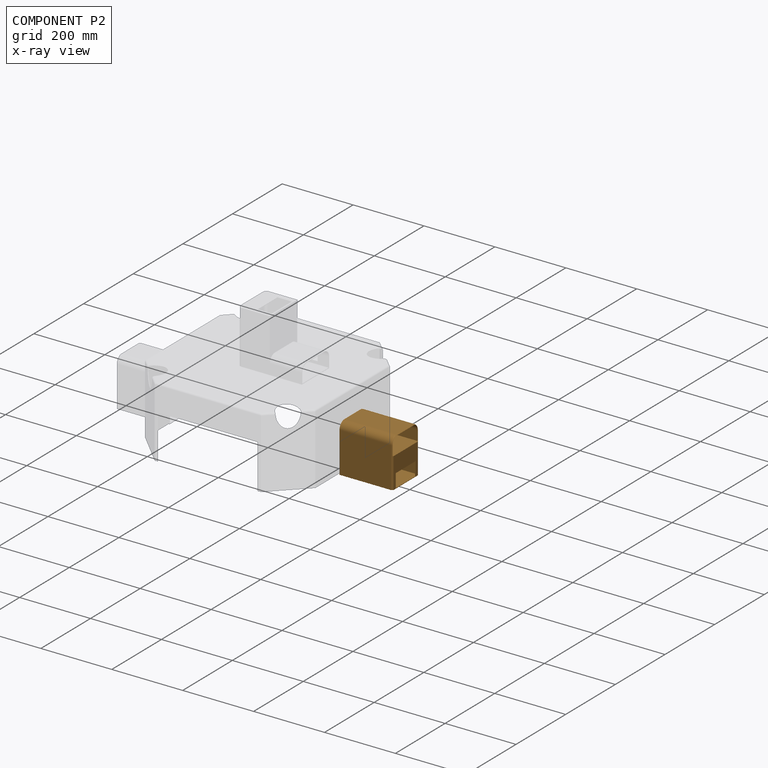
[diagram: component P2 — x-ray view]
COMPONENT P2 — geometry summary (no construction recipe available for this part):
  bounding box: 150.0 x 136.6 x 108.3 mm
  B-rep topology: 1 solid, 34 faces, 170 edges
  volume: 171647 mm^3 (8% of its bounding box)
Held by: FASTENED mate "Fastened 1" to P0.
PROVENANCE & LICENSES
Assembly (occurrences, transforms, mates, per-part STEP geometry): AutoMate dataset, Zenodo record 7776208, CC0.
Construction recipes: CADFS (HuggingFace VladPyatov/CADFS, CC-BY-4.0, layered over the ABC dataset), FeatureScript reconstruction programs keyed by ABC model id.
Join: ABC meta listings map ABC model id -> Onshape documentId; within a shared document, parts are matched by geometric signature (bounding-box dims + volume at 0.1% relative tolerance, exact B-rep face/solid counts).
Verification: 1 of this assembly's 4 components carries a recipe attachment, and every attachment is mesh-verified: the CADFS STEP and the AutoMate member STEP were compared as meshes in their shared local frame (symmetric sampled-point-to-mesh distance); worst across the 1 attachment: below the mesh-comparison resolution (tessellation chordal tolerance ~1.06 mm) on a 708 mm part.
Renders: orthographic iso camera (az 35 / el 25); the floor grid conveys scale (grid pitch printed in each image; no ruler). In the exploded view each component is displaced by its stored offset vector: the offsets alone carry the explosion direction (mate normal/axis signs are not orientation cues and do not encode it), and separation distances are assigned per mate-chain, not proportionally to assembly-order depth.
